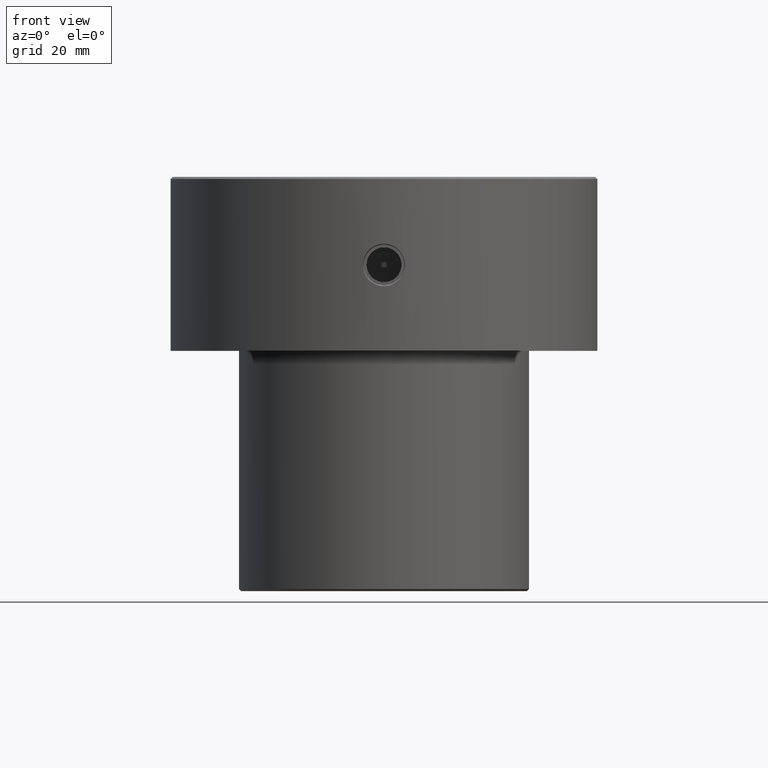
[diagram: clean part render]
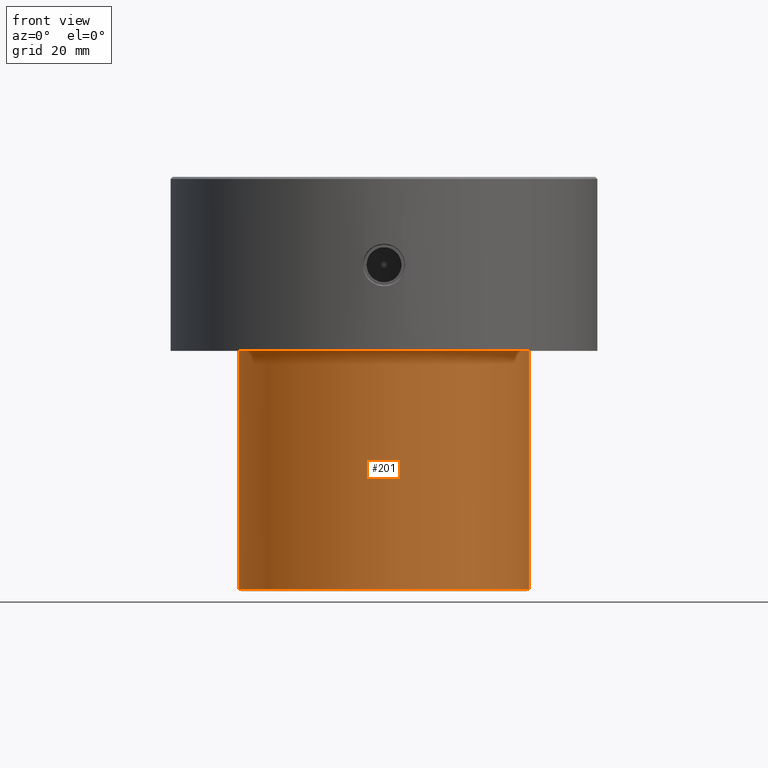
[diagram: same view with one face highlighted and labeled with its STEP entity id]
A machine part, front view. The second image highlights one B-rep face of the part: STEP entity #201.
In plain terms, the highlighted cylindrical surface (partial cylindrical patch) has radius 35 mm, axis along (-0, -0, 1).
Its self-contained STEP definition (entity closure, byte-faithful):
#23 = EDGE_CURVE ( 'NONE', #1120, #1121, #917, .T. ) ;
#33 = LINE ( 'NONE', #503, #279 ) ;
#41 = FACE_OUTER_BOUND ( 'NONE', #240, .T. ) ;
#43 = EDGE_CURVE ( 'NONE', #735, #1037, #533, .T. ) ;
#113 = VECTOR ( 'NONE', #1196, 1000.000000000000000 ) ;
#122 = CYLINDRICAL_SURFACE ( 'NONE', #1166, 35.00000000000000000 ) ;
#160 = CARTESIAN_POINT ( 'NONE',  ( 35.00000000000000000, 0.000000000000000000, -42.00000000000000000 ) ) ;
#161 = AXIS2_PLACEMENT_3D ( 'NONE', #1244, #468, #374 ) ;
#201 = ADVANCED_FACE ( 'NONE', ( #41 ), #122, .T. ) ;
#240 = EDGE_LOOP ( 'NONE', ( #547, #820, #620, #762 ) ) ;
#271 = DIRECTION ( 'NONE',  ( -0.000000000000000000, -0.000000000000000000, 1.000000000000000000 ) ) ;
#279 = VECTOR ( 'NONE', #401, 1000.000000000000000 ) ;
#281 = CARTESIAN_POINT ( 'NONE',  ( -35.00000000000000000, 4.286263797015736496E-15, -99.50000000000004263 ) ) ;
#374 = DIRECTION ( 'NONE',  ( 1.000000000000000000, 0.000000000000000000, 0.000000000000000000 ) ) ;
#401 = DIRECTION ( 'NONE',  ( -0.000000000000000000, -0.000000000000000000, 1.000000000000000000 ) ) ;
#468 = DIRECTION ( 'NONE',  ( -0.000000000000000000, -0.000000000000000000, 1.000000000000000000 ) ) ;
#498 = EDGE_CURVE ( 'NONE', #1121, #1037, #504, .T. ) ;
#503 = CARTESIAN_POINT ( 'NONE',  ( -35.00000000000000000, 4.286263797015736496E-15, 0.000000000000000000 ) ) ;
#504 = LINE ( 'NONE', #802, #113 ) ;
#533 = CIRCLE ( 'NONE', #161, 35.00000000000000000 ) ;
#547 = ORIENTED_EDGE ( 'NONE', *, *, #889, .F. ) ;
#620 = ORIENTED_EDGE ( 'NONE', *, *, #498, .T. ) ;
#658 = DIRECTION ( 'NONE',  ( -1.000000000000000000, 0.000000000000000000, 0.000000000000000000 ) ) ;
#735 = VERTEX_POINT ( 'NONE', #1046 ) ;
#762 = ORIENTED_EDGE ( 'NONE', *, *, #43, .F. ) ;
#802 = CARTESIAN_POINT ( 'NONE',  ( 35.00000000000000000, 0.000000000000000000, 0.000000000000000000 ) ) ;
#820 = ORIENTED_EDGE ( 'NONE', *, *, #23, .T. ) ;
#843 = CARTESIAN_POINT ( 'NONE',  ( 0.000000000000000000, 0.000000000000000000, -99.50000000000004263 ) ) ;
#885 = DIRECTION ( 'NONE',  ( 1.000000000000000000, 0.000000000000000000, 0.000000000000000000 ) ) ;
#889 = EDGE_CURVE ( 'NONE', #1120, #735, #33, .T. ) ;
#902 = DIRECTION ( 'NONE',  ( -0.000000000000000000, -0.000000000000000000, 1.000000000000000000 ) ) ;
#917 = CIRCLE ( 'NONE', #1084, 35.00000000000000000 ) ;
#999 = CARTESIAN_POINT ( 'NONE',  ( 0.000000000000000000, 0.000000000000000000, 0.000000000000000000 ) ) ;
#1037 = VERTEX_POINT ( 'NONE', #160 ) ;
#1046 = CARTESIAN_POINT ( 'NONE',  ( -35.00000000000000000, 4.286263797015736496E-15, -42.00000000000000000 ) ) ;
#1067 = CARTESIAN_POINT ( 'NONE',  ( 35.00000000000000000, 0.000000000000000000, -99.50000000000004263 ) ) ;
#1084 = AXIS2_PLACEMENT_3D ( 'NONE', #843, #271, #658 ) ;
#1120 = VERTEX_POINT ( 'NONE', #281 ) ;
#1121 = VERTEX_POINT ( 'NONE', #1067 ) ;
#1166 = AXIS2_PLACEMENT_3D ( 'NONE', #999, #902, #885 ) ;
#1196 = DIRECTION ( 'NONE',  ( -0.000000000000000000, -0.000000000000000000, 1.000000000000000000 ) ) ;
#1244 = CARTESIAN_POINT ( 'NONE',  ( 0.000000000000000000, 0.000000000000000000, -42.00000000000000000 ) ) ;